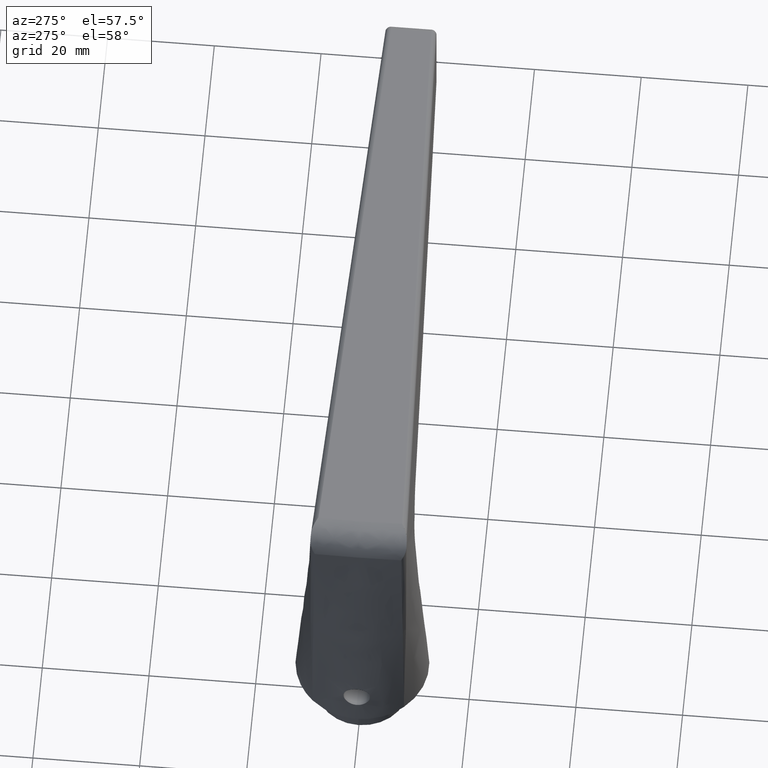
[diagram: clean part render]
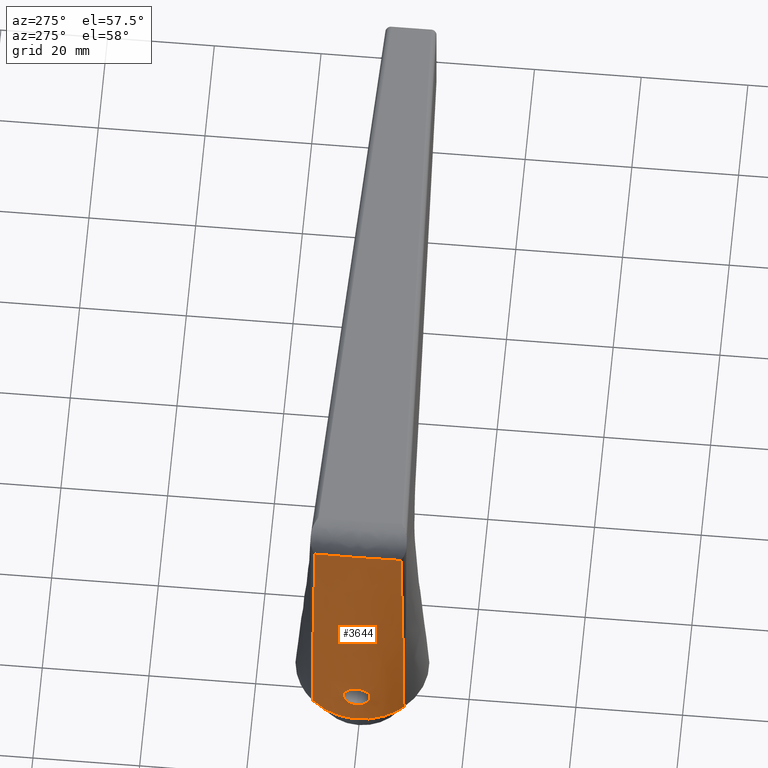
[diagram: same view with one face highlighted and labeled with its STEP entity id]
A machine part, auxiliary view. The second image highlights one B-rep face of the part: STEP entity #3644.
In plain terms, the highlighted face is a freeform B-spline surface patch.
Its self-contained STEP definition (entity closure, byte-faithful):
#212 = CARTESIAN_POINT ( 'NONE',  ( -12.00370345377459300, 0.3267649263732389500, 17.49999999999999300 ) ) ;
#575 = EDGE_CURVE ( 'NONE', #7585, #6700, #6639, .T. ) ;
#685 = CARTESIAN_POINT ( 'NONE',  ( -11.85596765805426000, 4.039733427453548100, 8.000000000000001800 ) ) ;
#716 = CARTESIAN_POINT ( 'NONE',  ( -9.545941688208396100, -2.999999999999970700, 64.54594140382838000 ) ) ;
#796 = ORIENTED_EDGE ( 'NONE', *, *, #1309, .T. ) ;
#806 = CARTESIAN_POINT ( 'NONE',  ( -12.13171328091116900, -1.651929193064440900, 13.11654014310000500 ) ) ;
#842 = CARTESIAN_POINT ( 'NONE',  ( -11.91595835548409200, -1.990820293784625500, 16.52094556612537700 ) ) ;
#1093 = CARTESIAN_POINT ( 'NONE',  ( -9.534586294673593100, -8.312223555146522000, 42.38401503471400400 ) ) ;
#1299 = EDGE_CURVE ( 'NONE', #5425, #8809, #7692, .T. ) ;
#1309 = EDGE_CURVE ( 'NONE', #6700, #4156, #3829, .T. ) ;
#1319 = CARTESIAN_POINT ( 'NONE',  ( -9.374316143204712400, 8.488925962622671400, 25.19158381952767600 ) ) ;
#1355 = CARTESIAN_POINT ( 'NONE',  ( -9.095085747604549900, 8.574929459985110500, 8.000000000000000000 ) ) ;
#1389 = CARTESIAN_POINT ( 'NONE',  ( -9.247102143127161600, 8.551000560544549600, 16.59567502232981100 ) ) ;
#1402 = CARTESIAN_POINT ( 'NONE',  ( -9.557448996509663200, 8.071567755496992900, 59.57634981516228100 ) ) ;
#1498 = CARTESIAN_POINT ( 'NONE',  ( -9.568734314662915400, 8.200033721130806100, 50.98026280080170400 ) ) ;
#1528 = CARTESIAN_POINT ( 'NONE',  ( -9.534585382639473700, 8.312224065460172900, 42.38398625475155500 ) ) ;
#1631 = CARTESIAN_POINT ( 'NONE',  ( -9.545941119448338300, 8.999999999999987600, 64.54594197258845200 ) ) ;
#1673 = CARTESIAN_POINT ( 'NONE',  ( -12.09499274879927100, 3.260704635135937700, 8.000000000000001800 ) ) ;
#1710 = CARTESIAN_POINT ( 'NONE',  ( -9.095086130120414200, -8.574929054265771500, 8.000000000000000000 ) ) ;
#1712 = CARTESIAN_POINT ( 'NONE',  ( -9.545941723755898800, -3.749999999999971600, 64.54594136828089300 ) ) ;
#1726 = ORIENTED_EDGE ( 'NONE', *, *, #11386, .T. ) ;
#1752 = CARTESIAN_POINT ( 'NONE',  ( -12.26491216381817900, -1.199488919396434100E-015, 12.50000000000001100 ) ) ;
#1791 = CARTESIAN_POINT ( 'NONE',  ( -12.02523515722913800, -2.181906983642737200, 13.73724337097433700 ) ) ;
#1799 = CARTESIAN_POINT ( 'NONE',  ( -12.00370345694949000, -5.468881355439572500E-017, 17.49999999999999600 ) ) ;
#1812 = CARTESIAN_POINT ( 'NONE',  ( -9.691456233431399200, -5.384796457596965300, 59.71621466600605300 ) ) ;
#1832 = CARTESIAN_POINT ( 'NONE',  ( -11.94110525065562800, -1.653875088961173500, 16.88200431520095500 ) ) ;
#1837 = FACE_OUTER_BOUND ( 'NONE', #10454, .T. ) ;
#1928 = CARTESIAN_POINT ( 'NONE',  ( -9.557448996509663200, 8.071567755496992900, 59.57634981516228100 ) ) ;
#2085 = CARTESIAN_POINT ( 'NONE',  ( -9.557449730816589600, -8.071567637285133000, 59.57634929814674500 ) ) ;
#2200 = B_SPLINE_SURFACE_WITH_KNOTS ( 'NONE', 3, 1, ( 
 ( #7643, #1631 ),
 ( #9474, #3638 ),
 ( #10375, #4627 ),
 ( #11279, #5669 ),
 ( #12181, #6685 ),
 ( #685, #7686 ),
 ( #1673, #8591 ),
 ( #2698, #9508 ),
 ( #3677, #10410 ),
 ( #4672, #11312 ),
 ( #5707, #12214 ),
 ( #6723, #716 ),
 ( #7720, #1712 ),
 ( #8628, #2731 ),
 ( #9545, #3718 ),
 ( #10444, #4717 ),
 ( #11351, #5744 ),
 ( #12247, #6767 ) ),
 .UNSPECIFIED., .F., .F., .F.,
 ( 4, 2, 2, 2, 2, 2, 2, 2, 4 ),
 ( 2, 2 ),
 ( 0.0000000000000000000, 0.1250000000000000300, 0.2500000000000000600, 0.3750000000000001100, 0.5000000000000000000, 0.6250000000000000000, 0.7500000000000000000, 0.8750000000000001100, 1.000000000000000000 ),
 ( 0.0000000000000000000, 1.000000000000000000 ),
 .UNSPECIFIED. ) ;
#2698 = CARTESIAN_POINT ( 'NONE',  ( -12.41709405395810300, 1.654333571642144300, 8.000000000000003600 ) ) ;
#2731 = CARTESIAN_POINT ( 'NONE',  ( -9.545941794850906000, -5.249999999999975100, 64.54594129718587700 ) ) ;
#2775 = ORIENTED_EDGE ( 'NONE', *, *, #1299, .F. ) ;
#2818 = CARTESIAN_POINT ( 'NONE',  ( -11.95493790713139300, -2.417932299816330800, 14.34383475386272600 ) ) ;
#2846 = CARTESIAN_POINT ( 'NONE',  ( -9.792541022037344300, -1.346642267949147700, 59.82556955478381900 ) ) ;
#2861 = CARTESIAN_POINT ( 'NONE',  ( -11.96695786016097100, -1.256554172501875000, 17.16741976005163300 ) ) ;
#3506 = ORIENTED_EDGE ( 'NONE', *, *, #11868, .T. ) ;
#3638 = CARTESIAN_POINT ( 'NONE',  ( -9.545941154995842800, 8.249999999999992900, 64.54594193704095100 ) ) ;
#3644 = ADVANCED_FACE ( 'NONE', ( #4500, #1837 ), #2200, .T. ) ;
#3663 = EDGE_CURVE ( 'NONE', #8809, #5425, #9378, .T. ) ;
#3677 = CARTESIAN_POINT ( 'NONE',  ( -12.49999998154885500, 0.8272456994945836000, 8.000000000000000000 ) ) ;
#3718 = CARTESIAN_POINT ( 'NONE',  ( -9.545941830398410500, -5.999999999999978700, 64.54594126163837600 ) ) ;
#3761 = B_SPLINE_CURVE_WITH_KNOTS ( 'NONE', 3,
 ( #10503, #3788, #1812, #8723, #2846, #9628, #3828, #10546, #4829, #11442 ),
 .UNSPECIFIED., .F., .F.,
 ( 4, 2, 2, 2, 4 ),
 ( 6.964970275618042500E-015, 0.004040020616515187100, 0.008080041233023409200, 0.01212006184953163200, 0.01616008246603985900 ),
 .UNSPECIFIED. ) ;
#3788 = CARTESIAN_POINT ( 'NONE',  ( -9.631971819161371700, -6.728726735923948400, 59.65283863991590600 ) ) ;
#3804 = CARTESIAN_POINT ( 'NONE',  ( -11.91673791685330000, -2.499402228427223300, 14.82777365603859500 ) ) ;
#3828 = CARTESIAN_POINT ( 'NONE',  ( -9.771732879513344000, 2.693262776860253300, 59.80262440269286400 ) ) ;
#3829 = B_SPLINE_CURVE_WITH_KNOTS ( 'NONE', 3,
 ( #11976, #11490, #11439, #11429, #11416, #11402, #11394, #11385, #11372, #11358, #11345, #11331, #11307, #11297, #11273, #11260, #11237, #11223 ),
 .UNSPECIFIED., .F., .F.,
 ( 4, 2, 2, 2, 2, 2, 2, 2, 4 ),
 ( 1.734723475976807100E-018, 0.002349409935976984900, 0.004698819871953968100, 0.007048229807930951800, 0.009397639743907932800, 0.01174704967988491600, 0.01409645961586189800, 0.01644586955183888200, 0.01879527948781586200 ),
 .UNSPECIFIED. ) ;
#3847 = CARTESIAN_POINT ( 'NONE',  ( -11.98866414111466300, -0.8070487698307571300, 17.37182252466586600 ) ) ;
#4156 = VERTEX_POINT ( 'NONE', #1710 ) ;
#4500 = FACE_BOUND ( 'NONE', #6748, .T. ) ;
#4616 = B_SPLINE_CURVE_WITH_KNOTS ( 'NONE', 3,
 ( #11645, #10751, #7098, #1093, #8059, #2085 ),
 .UNSPECIFIED., .F., .F.,
 ( 4, 2, 4 ),
 ( -4.033914192177945100E-005, 0.02575055268519095600, 0.05154144451230370500 ),
 .UNSPECIFIED. ) ;
#4627 = CARTESIAN_POINT ( 'NONE',  ( -9.545941190543347300, 7.499999999999999100, 64.54594190149346400 ) ) ;
#4672 = CARTESIAN_POINT ( 'NONE',  ( -12.50000001845114300, -0.8272451418866825200, 8.000000000000000000 ) ) ;
#4717 = CARTESIAN_POINT ( 'NONE',  ( -9.545941901493417700, -7.499999999999984000, 64.54594119054338800 ) ) ;
#4759 = CARTESIAN_POINT ( 'NONE',  ( -12.24589583613028400, -0.6485210162608872100, 12.58007262178660600 ) ) ;
#4804 = CARTESIAN_POINT ( 'NONE',  ( -11.89560256455040000, -2.484764081958067200, 15.32057902402766600 ) ) ;
#4829 = CARTESIAN_POINT ( 'NONE',  ( -9.631972908886224300, 6.728696249273857800, 59.65284081323130000 ) ) ;
#4855 = CARTESIAN_POINT ( 'NONE',  ( -12.00169820216537900, -0.3293532301850226600, 17.48362994843322600 ) ) ;
#4865 = ORIENTED_EDGE ( 'NONE', *, *, #575, .T. ) ;
#5191 = CARTESIAN_POINT ( 'NONE',  ( -9.095085747604549900, 8.574929459985110500, 8.000000000000000000 ) ) ;
#5425 = VERTEX_POINT ( 'NONE', #1799 ) ;
#5669 = CARTESIAN_POINT ( 'NONE',  ( -9.545941261638354500, 6.000000000000007100, 64.54594183039843400 ) ) ;
#5707 = CARTESIAN_POINT ( 'NONE',  ( -12.41709412775564300, -1.654333017732562600, 8.000000000000000000 ) ) ;
#5744 = CARTESIAN_POINT ( 'NONE',  ( -9.545941937040918600, -8.249999999999985800, 64.54594115499587300 ) ) ;
#5792 = CARTESIAN_POINT ( 'NONE',  ( -12.20644517362212200, -1.109747353144762600, 12.75383990724942000 ) ) ;
#5833 = CARTESIAN_POINT ( 'NONE',  ( -11.89179077854634900, -2.374771008007234000, 15.79843792826449100 ) ) ;
#5874 = CARTESIAN_POINT ( 'NONE',  ( -12.00370345694949000, -5.468881355439572500E-017, 17.49999999999999600 ) ) ;
#6639 = B_SPLINE_CURVE_WITH_KNOTS ( 'NONE', 3,
 ( #1402, #1498, #1528, #1319, #1389, #1355 ),
 .UNSPECIFIED., .F., .F.,
 ( 4, 2, 4 ),
 ( 0.004970190703218611100, 0.03076134802424223100, 0.05655250534526586000 ),
 .UNSPECIFIED. ) ;
#6685 = CARTESIAN_POINT ( 'NONE',  ( -9.545941297185855500, 5.250000000000009800, 64.54594179485093300 ) ) ;
#6700 = VERTEX_POINT ( 'NONE', #5191 ) ;
#6723 = CARTESIAN_POINT ( 'NONE',  ( -12.09499289425482600, -3.260704095594851600, 8.000000000000001800 ) ) ;
#6748 = EDGE_LOOP ( 'NONE', ( #12384, #2775 ) ) ;
#6767 = CARTESIAN_POINT ( 'NONE',  ( -9.545941972588423100, -8.999999999999991100, 64.54594111944835800 ) ) ;
#6806 = CARTESIAN_POINT ( 'NONE',  ( -12.15236323098851500, -1.524072865681135800, 13.01159174270592300 ) ) ;
#6846 = CARTESIAN_POINT ( 'NONE',  ( -11.90280101755274700, -2.171676814633058900, 16.24918400167723900 ) ) ;
#7098 = CARTESIAN_POINT ( 'NONE',  ( -9.374316408361076800, -8.488925947379701900, 25.19155566590238500 ) ) ;
#7585 = VERTEX_POINT ( 'NONE', #1928 ) ;
#7643 = CARTESIAN_POINT ( 'NONE',  ( -9.095085747604549900, 8.574929459985112200, 8.000000000000000000 ) ) ;
#7686 = CARTESIAN_POINT ( 'NONE',  ( -9.545941368280862700, 3.750000000000016400, 64.54594172375591700 ) ) ;
#7692 = B_SPLINE_CURVE_WITH_KNOTS ( 'NONE', 3,
 ( #12450, #212, #12432, #12406, #12392, #12375, #12366, #12353, #12340, #12330, #12316, #12301, #12290, #12280, #12265, #12254, #12242, #12230, #12210, #12197, #12171, #12154, #12130, #12115, #12093, #12082, #12056, #12042, #12018, #12001 ),
 .UNSPECIFIED., .F., .F.,
 ( 4, 2, 2, 2, 2, 2, 2, 2, 2, 2, 2, 2, 2, 2, 4 ),
 ( 0.007837079205508410900, 0.008816508586893336700, 0.009306223277585798700, 0.009795937968278262500, 0.01028565265897072500, 0.01077536734966318800, 0.01126508204035565000, 0.01175479673104811200, 0.01224451142174057600, 0.01273422611243304000, 0.01322394080312550200, 0.01371365549381796400, 0.01469308487520289100, 0.01518279956589535300, 0.01567251425658781500 ),
 .UNSPECIFIED. ) ;
#7720 = CARTESIAN_POINT ( 'NONE',  ( -11.85596783826122900, -4.039732898575047100, 8.000000000000000000 ) ) ;
#7785 = CARTESIAN_POINT ( 'NONE',  ( -12.06915955978067100, -1.996107439701798800, 13.46028591778330300 ) ) ;
#7828 = CARTESIAN_POINT ( 'NONE',  ( -11.92396489532598700, -1.886947955064688800, 16.64823252825520300 ) ) ;
#8059 = CARTESIAN_POINT ( 'NONE',  ( -9.568735005630939500, -8.200033536200875200, 50.98026379857709100 ) ) ;
#8558 = CARTESIAN_POINT ( 'NONE',  ( -12.26491216457780300, -0.1656665805507779000, 12.50000000000000500 ) ) ;
#8591 = CARTESIAN_POINT ( 'NONE',  ( -9.545941403828365400, 3.000000000000019100, 64.54594168820841600 ) ) ;
#8628 = CARTESIAN_POINT ( 'NONE',  ( -11.24788920830582300, -5.510753454056120000, 8.000000000000001800 ) ) ;
#8706 = CARTESIAN_POINT ( 'NONE',  ( -11.97126412158446700, -2.369447621266936600, 14.18634401161993700 ) ) ;
#8723 = CARTESIAN_POINT ( 'NONE',  ( -9.771718602761259500, -2.693868715904932400, 59.80260847182611200 ) ) ;
#8741 = CARTESIAN_POINT ( 'NONE',  ( -11.95000660745173900, -1.527680024076929900, 16.98565620104046300 ) ) ;
#8809 = VERTEX_POINT ( 'NONE', #11549 ) ;
#9378 = B_SPLINE_CURVE_WITH_KNOTS ( 'NONE', 3,
 ( #1752, #8558, #10485, #4759, #11390, #5792, #12283, #6806, #806, #7785, #1791, #8706, #2818, #9609, #3804, #10525, #4804, #11423, #5833, #12322, #6846, #842, #7828, #1832, #8741, #2861, #9647, #3847, #10559, #4855, #11459, #5874 ),
 .UNSPECIFIED., .F., .F.,
 ( 4, 2, 2, 2, 2, 2, 2, 2, 2, 2, 2, 2, 2, 2, 2, 4 ),
 ( 8.176598929756147800E-019, 0.0004898174503442765500, 0.0009796349006885522300, 0.001469452351032827800, 0.001959269801377103600, 0.002938904702065654700, 0.003428722152409930500, 0.003918539602754206300, 0.004408357053098482100, 0.004898174503442757900, 0.005387991953787033700, 0.005877809404131308600, 0.006367626854475584400, 0.006857444304819860200, 0.007347261755164136000, 0.007837079205508410900 ),
 .UNSPECIFIED. ) ;
#9474 = CARTESIAN_POINT ( 'NONE',  ( -9.585281837632637200, 8.054998014163787800, 8.000000000000001800 ) ) ;
#9508 = CARTESIAN_POINT ( 'NONE',  ( -9.545941474923374400, 1.500000000000024400, 64.54594161711341400 ) ) ;
#9545 = CARTESIAN_POINT ( 'NONE',  ( -10.87909440640282100, -6.202635178075680300, 8.000000000000000000 ) ) ;
#9609 = CARTESIAN_POINT ( 'NONE',  ( -11.92760573548306600, -2.482974390020776100, 14.66565345039250300 ) ) ;
#9628 = CARTESIAN_POINT ( 'NONE',  ( -9.792542859041244400, 1.346451772235792300, 59.82557178290617400 ) ) ;
#9647 = CARTESIAN_POINT ( 'NONE',  ( -11.97508603713509200, -1.109839288676299800, 17.24613591723835900 ) ) ;
#10375 = CARTESIAN_POINT ( 'NONE',  ( -10.04766941309131300, 7.474738632283832700, 8.000000000000000000 ) ) ;
#10410 = CARTESIAN_POINT ( 'NONE',  ( -9.545941510470877100, 0.7500000000000269800, 64.54594158156591300 ) ) ;
#10444 = CARTESIAN_POINT ( 'NONE',  ( -10.04766974652916800, -7.474738184071039600, 8.000000000000003600 ) ) ;
#10454 = EDGE_LOOP ( 'NONE', ( #1726, #3506, #4865, #796 ) ) ;
#10485 = CARTESIAN_POINT ( 'NONE',  ( -12.26095700538346900, -0.3284497976686009400, 12.51630340927676100 ) ) ;
#10503 = CARTESIAN_POINT ( 'NONE',  ( -9.557449730816589600, -8.071567637285133000, 59.57634929814674500 ) ) ;
#10525 = CARTESIAN_POINT ( 'NONE',  ( -11.90072820741509000, -2.500566034695669500, 15.15441152530704500 ) ) ;
#10546 = CARTESIAN_POINT ( 'NONE',  ( -9.691463605874606200, 5.384652409217311600, 59.71622333541478200 ) ) ;
#10559 = CARTESIAN_POINT ( 'NONE',  ( -11.99415325595023400, -0.6509589371103651200, 17.41932712405410700 ) ) ;
#10741 = CARTESIAN_POINT ( 'NONE',  ( -9.557449730816589600, -8.071567637285133000, 59.57634929814674500 ) ) ;
#10751 = CARTESIAN_POINT ( 'NONE',  ( -9.247101035686146300, -8.551000453400016400, 16.59558653735958000 ) ) ;
#11223 = CARTESIAN_POINT ( 'NONE',  ( -9.095086130120414200, -8.574929054265771500, 8.000000000000000000 ) ) ;
#11237 = CARTESIAN_POINT ( 'NONE',  ( -9.585282196955088100, -8.054997586577373500, 7.999999999972750700 ) ) ;
#11260 = CARTESIAN_POINT ( 'NONE',  ( -10.04766974652941000, -7.474738184071026300, 7.999999999972754200 ) ) ;
#11273 = CARTESIAN_POINT ( 'NONE',  ( -10.87909440640346400, -6.202635178075778000, 7.999999999972750700 ) ) ;
#11279 = CARTESIAN_POINT ( 'NONE',  ( -10.87909412971174200, 6.202635663377190400, 7.999999999999998200 ) ) ;
#11297 = CARTESIAN_POINT ( 'NONE',  ( -11.24788920830664200, -5.510753454056245300, 7.999999999972752500 ) ) ;
#11307 = CARTESIAN_POINT ( 'NONE',  ( -11.85596783826234100, -4.039732898575186600, 7.999999999972750700 ) ) ;
#11312 = CARTESIAN_POINT ( 'NONE',  ( -9.545941581565884300, -0.7499999999999704700, 64.54594151047091100 ) ) ;
#11331 = CARTESIAN_POINT ( 'NONE',  ( -12.09499289425605500, -3.260704095594976900, 7.999999999972752500 ) ) ;
#11345 = CARTESIAN_POINT ( 'NONE',  ( -12.41709412775702500, -1.654333017732636700, 7.999999999972750700 ) ) ;
#11351 = CARTESIAN_POINT ( 'NONE',  ( -9.585282196955070300, -8.054997586577467700, 8.000000000000000000 ) ) ;
#11358 = CARTESIAN_POINT ( 'NONE',  ( -12.50000001845256600, -0.8272451418867196000, 7.999999999972750700 ) ) ;
#11372 = CARTESIAN_POINT ( 'NONE',  ( -12.49999998155027800, 0.8272456994946206800, 7.999999999972750700 ) ) ;
#11385 = CARTESIAN_POINT ( 'NONE',  ( -12.41709405395948500, 1.654333571642218500, 7.999999999972754200 ) ) ;
#11386 = EDGE_CURVE ( 'NONE', #4156, #11963, #4616, .T. ) ;
#11390 = CARTESIAN_POINT ( 'NONE',  ( -12.23460436208786100, -0.8075050460762112100, 12.62835290343640100 ) ) ;
#11394 = CARTESIAN_POINT ( 'NONE',  ( -12.09499274880050000, 3.260704635136063300, 7.999999999972752500 ) ) ;
#11402 = CARTESIAN_POINT ( 'NONE',  ( -11.85596765805537200, 4.039733427453688500, 7.999999999972752500 ) ) ;
#11416 = CARTESIAN_POINT ( 'NONE',  ( -11.24788896247945900, 5.510753955809188500, 7.999999999972750700 ) ) ;
#11423 = CARTESIAN_POINT ( 'NONE',  ( -11.89119163985738200, -2.421703531266457000, 15.64200892539513700 ) ) ;
#11429 = CARTESIAN_POINT ( 'NONE',  ( -10.87909412971238300, 6.202635663377288100, 7.999999999972749800 ) ) ;
#11439 = CARTESIAN_POINT ( 'NONE',  ( -10.04766941309155500, 7.474738632283819400, 7.999999999972750700 ) ) ;
#11442 = CARTESIAN_POINT ( 'NONE',  ( -9.557448996509663200, 8.071567755496992900, 59.57634981516228100 ) ) ;
#11459 = CARTESIAN_POINT ( 'NONE',  ( -12.00370345853726700, -0.1634167466691217600, 17.49999999999999300 ) ) ;
#11490 = CARTESIAN_POINT ( 'NONE',  ( -9.585281837632655000, 8.054998014163691900, 7.999999999972752500 ) ) ;
#11549 = CARTESIAN_POINT ( 'NONE',  ( -12.26491216381817900, -1.199488919396434100E-015, 12.50000000000001100 ) ) ;
#11645 = CARTESIAN_POINT ( 'NONE',  ( -9.095086130120414200, -8.574929054265771500, 8.000000000000000000 ) ) ;
#11868 = EDGE_CURVE ( 'NONE', #11963, #7585, #3761, .T. ) ;
#11963 = VERTEX_POINT ( 'NONE', #10741 ) ;
#11976 = CARTESIAN_POINT ( 'NONE',  ( -9.095085747604549900, 8.574929459985110500, 8.000000000000000000 ) ) ;
#12001 = CARTESIAN_POINT ( 'NONE',  ( -12.26491216381817900, -1.199488919396434100E-015, 12.50000000000001100 ) ) ;
#12018 = CARTESIAN_POINT ( 'NONE',  ( -12.26491216305871900, 0.1656318250717241900, 12.50000000000000700 ) ) ;
#12042 = CARTESIAN_POINT ( 'NONE',  ( -12.26095681983907300, 0.3291614934284515200, 12.51629915463089500 ) ) ;
#12056 = CARTESIAN_POINT ( 'NONE',  ( -12.24569353889670400, 0.6521026964184747400, 12.58093421929725300 ) ) ;
#12082 = CARTESIAN_POINT ( 'NONE',  ( -12.23437568397352500, 0.8102336952277513500, 12.62935610080585400 ) ) ;
#12093 = CARTESIAN_POINT ( 'NONE',  ( -12.19234432246050300, 1.260543307222106800, 12.81671002354404900 ) ) ;
#12115 = CARTESIAN_POINT ( 'NONE',  ( -12.15241862445156700, 1.538103596768088300, 13.00270083486639500 ) ) ;
#12130 = CARTESIAN_POINT ( 'NONE',  ( -12.08991842457780500, 1.881840389740602900, 13.34624112855003000 ) ) ;
#12154 = CARTESIAN_POINT ( 'NONE',  ( -12.06830290349356500, 1.986635854092844200, 13.47362333554003800 ) ) ;
#12171 = CARTESIAN_POINT ( 'NONE',  ( -12.02692289421013100, 2.167948544795230200, 13.74439383336360300 ) ) ;
#12181 = CARTESIAN_POINT ( 'NONE',  ( -11.24788896247864000, 5.510753955809063200, 8.000000000000000000 ) ) ;
#12197 = CARTESIAN_POINT ( 'NONE',  ( -12.00719767422171600, 2.244620424357879800, 13.88724239257999900 ) ) ;
#12210 = CARTESIAN_POINT ( 'NONE',  ( -11.97107460903823100, 2.370069603015790200, 14.18801452034152400 ) ) ;
#12214 = CARTESIAN_POINT ( 'NONE',  ( -9.545941617113387100, -1.499999999999970000, 64.54594147492339600 ) ) ;
#12230 = CARTESIAN_POINT ( 'NONE',  ( -11.95467229215508600, 2.418630351122445200, 14.34672679703965400 ) ) ;
#12242 = CARTESIAN_POINT ( 'NONE',  ( -11.92758559948386000, 2.482955475271194900, 14.66612762783131500 ) ) ;
#12247 = CARTESIAN_POINT ( 'NONE',  ( -9.095086130120414200, -8.574929054265771500, 8.000000000000000000 ) ) ;
#12254 = CARTESIAN_POINT ( 'NONE',  ( -11.91668037200321000, 2.499551972303442900, 14.82839785697891900 ) ) ;
#12265 = CARTESIAN_POINT ( 'NONE',  ( -11.90056536736287500, 2.500430305677845400, 15.15828974756205800 ) ) ;
#12280 = CARTESIAN_POINT ( 'NONE',  ( -11.89557003831054300, 2.484525445320016100, 15.32213436576439100 ) ) ;
#12283 = CARTESIAN_POINT ( 'NONE',  ( -12.18968846835604200, -1.252997638091907000, 12.83053868056679300 ) ) ;
#12290 = CARTESIAN_POINT ( 'NONE',  ( -11.89119715306376600, 2.421555703266820000, 15.64242136797042100 ) ) ;
#12301 = CARTESIAN_POINT ( 'NONE',  ( -11.89181458127746400, 2.373842017639784100, 15.80122010815499700 ) ) ;
#12316 = CARTESIAN_POINT ( 'NONE',  ( -11.89766826110074600, 2.248337113955914300, 16.10546813994453400 ) ) ;
#12322 = CARTESIAN_POINT ( 'NONE',  ( -11.89758433418930400, -2.249727220812286300, 16.10261865470307200 ) ) ;
#12330 = CARTESIAN_POINT ( 'NONE',  ( -11.90281057760803800, 2.171531014348509400, 16.24946868286373900 ) ) ;
#12340 = CARTESIAN_POINT ( 'NONE',  ( -11.91599361480852400, 1.990349053827304800, 16.52158784815845000 ) ) ;
#12353 = CARTESIAN_POINT ( 'NONE',  ( -11.92413025206223800, 1.884732470319772500, 16.65060696555461600 ) ) ;
#12366 = CARTESIAN_POINT ( 'NONE',  ( -11.94111152314472200, 1.653755548190491800, 16.88197035742975100 ) ) ;
#12375 = CARTESIAN_POINT ( 'NONE',  ( -11.94999910552235700, 1.527859305968555500, 16.98560733821008700 ) ) ;
#12384 = ORIENTED_EDGE ( 'NONE', *, *, #3663, .F. ) ;
#12392 = CARTESIAN_POINT ( 'NONE',  ( -11.96705919723250500, 1.254872874115674500, 17.16847518551565300 ) ) ;
#12406 = CARTESIAN_POINT ( 'NONE',  ( -11.97513911263556900, 1.108716706899893100, 17.24663381767703600 ) ) ;
#12432 = CARTESIAN_POINT ( 'NONE',  ( -11.99540319225616600, 0.6566450335046171100, 17.43419027348520300 ) ) ;
#12450 = CARTESIAN_POINT ( 'NONE',  ( -12.00370345694949000, -5.468881355439572500E-017, 17.49999999999999600 ) ) ;